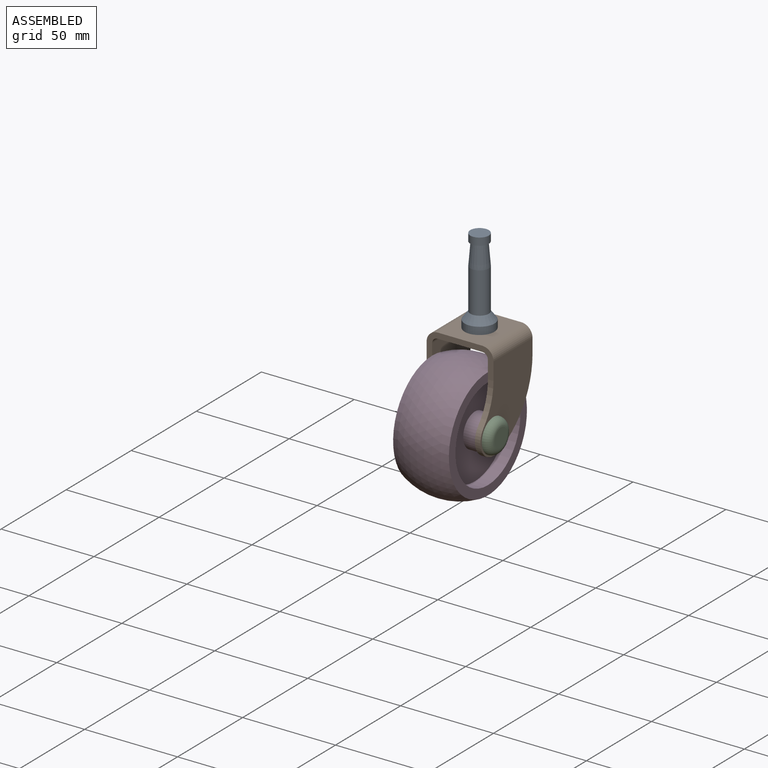
[diagram: assembled view]
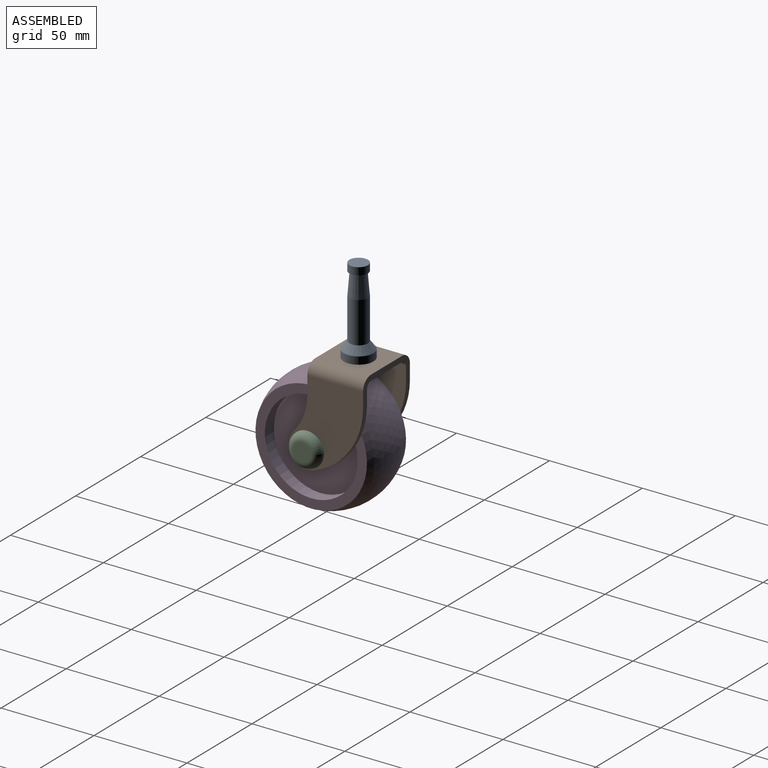
[diagram: assembled view, second angle]
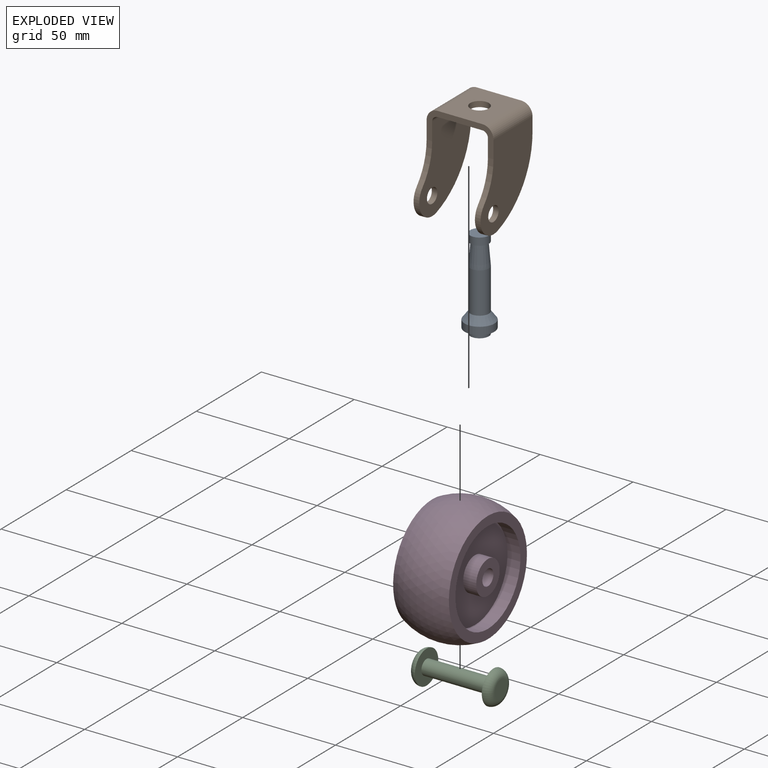
[diagram: exploded view]
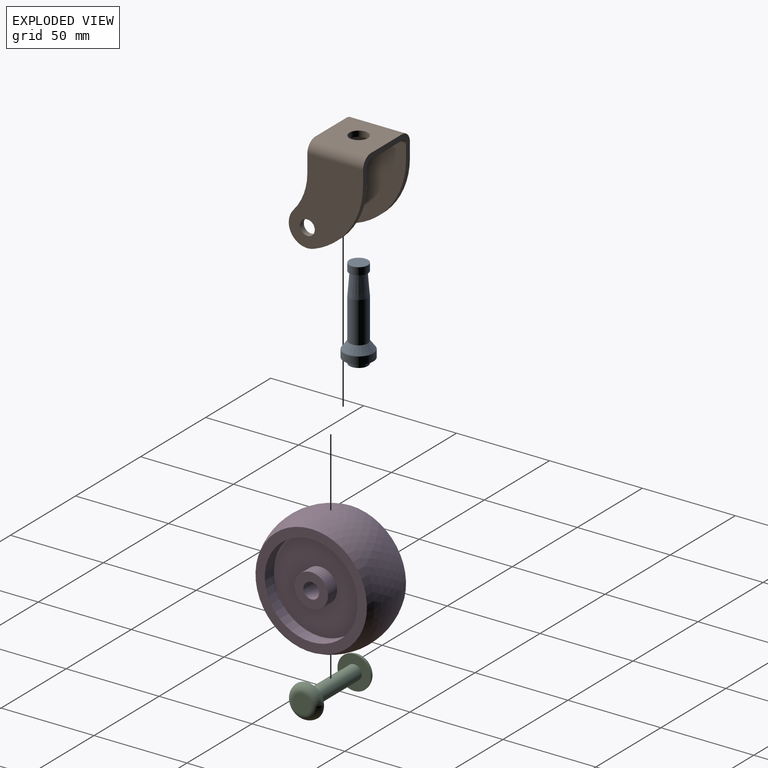
[diagram: exploded view, second angle]
ASSEMBLY  parts=4 mates=3
PART A: 10 faces, bbox 16x16x49 mm
  f0: cylinder r=5mm len=10mm, axis (0,0,1), area 125.7mm2, adj f1,f9
  f1: plane 10x10mm, normal (0,0,-1), area 28.3mm2, adj f0,f2
  f2: cone r=4mm half-angle=4.8deg, axis (0,0,-1), area 340.5mm2, adj f1,f3
  f3: cylinder r=5mm len=22mm, axis (0,0,1), area 691.2mm2, adj f2,f4
  f4: cone r=8mm half-angle=36.9deg, axis (0,0,-1), area 204.2mm2, adj f3,f5
  f5: cylinder r=8mm len=16mm, axis (0,0,1), area 201.1mm2, adj f4,f6
  f6: plane 16x16mm, normal (0,0,-1), area 122.5mm2, adj f5,f7
  f7: cylinder r=5mm len=10mm, axis (0,0,1), area 94.2mm2, adj f6,f8
  f8: plane 10x10mm, normal (0,0,-1), area 78.5mm2, adj f7
  f9: plane 10x10mm, normal (0,0,1), area 78.5mm2, adj f0
PART B: 21 faces, bbox 36x40x52 mm
  f0: plane 36x15.54mm, normal (0,-1,0), area 171.7mm2, adj f1,f6,f9,f11,f12,f13,f14,f15
  f1: cylinder r=30mm len=19.84mm, axis (-1,0,0), area 65mm2, adj f0,f2,f11,f14
  f2: cylinder r=10mm len=16.61mm, axis (-1,0,0), area 79mm2, adj f1,f3,f11,f14
  f3: cylinder r=40mm len=37.71mm, axis (-1,0,0), area 147.7mm2, adj f2,f4,f11,f14
  f4: plane 36x13.72mm, normal (0,1,0), area 160.7mm2, adj f3,f8,f9,f11,f12,f13,f14,f15
  f5: cylinder r=4mm len=8mm, axis (-1,0,0), area 75.4mm2, adj f11,f14
  f6: cylinder r=30mm len=19.84mm, axis (-1,0,0), area 65mm2, adj f0,f7,f12,f15
  f7: cylinder r=10mm len=16.61mm, axis (-1,0,0), area 79mm2, adj f6,f8,f12,f15
  f8: cylinder r=40mm len=37.71mm, axis (-1,0,0), area 147.7mm2, adj f4,f7,f12,f15
  f9: plane 30x24mm, normal (0,0,1), area 641.5mm2, adj f0,f4,f18,f19,f20
  f10: cylinder r=4mm len=8mm, axis (-1,0,0), area 75.4mm2, adj f12,f15
  f11: plane 46x40mm, normal (1,0,0), area 1227.9mm2, adj f0,f1,f2,f3,f4,f5,f19
  f12: plane 46x40mm, normal (-1,0,0), area 1227.9mm2, adj f0,f4,f6,f7,f8,f10,f18
  f13: plane 30x24mm, normal (0,0,-1), area 641.5mm2, adj f0,f4,f16,f17,f20
  f14: plane 46x40mm, normal (-1,0,0), area 1227.9mm2, adj f0,f1,f2,f3,f4,f5,f17
  f15: plane 46x40mm, normal (1,0,0), area 1227.9mm2, adj f0,f4,f6,f7,f8,f10,f16
  f16: cylinder r=3mm len=30mm, axis (0,1,0), area 141.4mm2, adj f0,f4,f13,f15
  f17: cylinder r=3mm len=30mm, axis (0,-1,0), area 141.4mm2, adj f0,f4,f13,f14
  f18: cylinder r=6mm len=30mm, axis (0,-1,0), area 282.7mm2, adj f0,f4,f9,f12
  f19: cylinder r=6mm len=30mm, axis (0,1,0), area 282.7mm2, adj f0,f4,f9,f11
  f20: cylinder r=5mm len=10mm, axis (0,0,1), area 94.2mm2, adj f9,f13
PART C: 7 faces, bbox 44x19.5x19.5 mm
  f0: plane 10x10mm, normal (1,0,0), area 78.5mm2, adj f6
  f1: plane 18x18mm, normal (-1,0,0), area 204.2mm2, adj f2,f6
  f2: cylinder r=4mm len=36mm, axis (1,0,0), area 904.8mm2, adj f1,f4
  f3: plane 10x10mm, normal (-1,0,0), area 78.5mm2, adj f5
  f4: plane 18x18mm, normal (1,0,0), area 204.2mm2, adj f2,f5
  f5: torus R=5mm, axis (-1,0,0), area 297.9mm2, adj f3,f4
  f6: torus R=5mm, axis (1,0,0), area 297.9mm2, adj f0,f1
PART D: 12 faces, bbox 30x67.1x67.1 mm
  f0: plane 60x60mm, normal (-1,0,0), area 863.9mm2, adj f1,f11
  f1: cylinder r=25mm len=50mm, axis (-1,0,0), area 1099.6mm2, adj f0,f2
  f2: plane 50x50mm, normal (-1,0,0), area 1709mm2, adj f1,f3
  f3: cylinder r=9mm len=18mm, axis (-1,0,0), area 395.8mm2, adj f2,f4
  f4: plane 18x18mm, normal (-1,0,0), area 197.7mm2, adj f3,f5
  f5: cylinder r=4.25mm len=30mm, axis (-1,0,0), area 801.1mm2, adj f4,f6
  f6: plane 18x18mm, normal (1,0,0), area 197.7mm2, adj f5,f7
  f7: cylinder r=9mm len=18mm, axis (-1,0,0), area 395.8mm2, adj f6,f8
  f8: plane 50x50mm, normal (1,0,0), area 1709mm2, adj f7,f9
  f9: cylinder r=25mm len=50mm, axis (-1,0,0), area 1099.6mm2, adj f8,f10
  f10: plane 60x60mm, normal (1,0,0), area 863.9mm2, adj f9,f11
  f11: sphere r=33.54mm, area 6322.3mm2, adj f0,f10
PLACE A t=(50.8,-15,22.11)mm
PLACE B at identity fixed
PLACE C t=(36,-30,-42)mm
PLACE D t=(47.37,-3.75,-42)mm
MATE revolute C.f5 <-> B.f2  axis (1,0,0) through (0,-30,-42)mm
MATE revolute A.f0 <-> B.f20  axis (0,0,-1) through (18,-15,0)mm
MATE revolute D.f1 <-> B.f2  axis (1,0,0) through (33,-30,-42)mm
